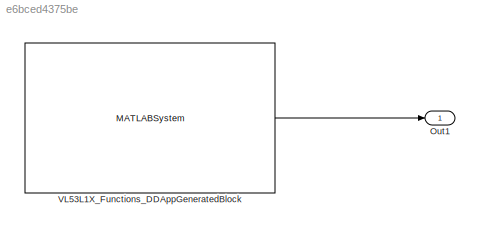
MODEL slx_e6bced4375be
KIND model
CONFIG AbsTol = auto
CONFIG EnableMultiTasking = on
CONFIG FixedStep = auto
CONFIG MaxStep = auto
CONFIG MinStep = auto
CONFIG RelTol = 1e-3
CONFIG SampleTimeConstraint = Unconstrained
CONFIG SolverName = FixedStepAuto
CONFIG StartTime = 0.0
CONFIG StopTime = inf
BLOCK [Outport] Out1
BLOCK [MATLABSystem] VL53L1X_Functions_DDAppGeneratedBlock
  MaskDisplay = color('white');plot([100,100,100,100]*1,[100,100,100,100]*1);plot([100,100,100,100]*0,[100,100,100,100]*0);color('blue');text(38, 92, 'IO Device Builder','horizontalAlignment', 'right');\ncolor('black');text(52,50,' VL53L1X_Functions','horizontalAlignment','center');\nport_label('output',1,'Distance');
  MaskType = VL53L1X_Functions
  SampleTime = 0.02
  System = VL53L1X_Functions
LINE VL53L1X_Functions_DDAppGeneratedBlock:1 -> Out1:1
